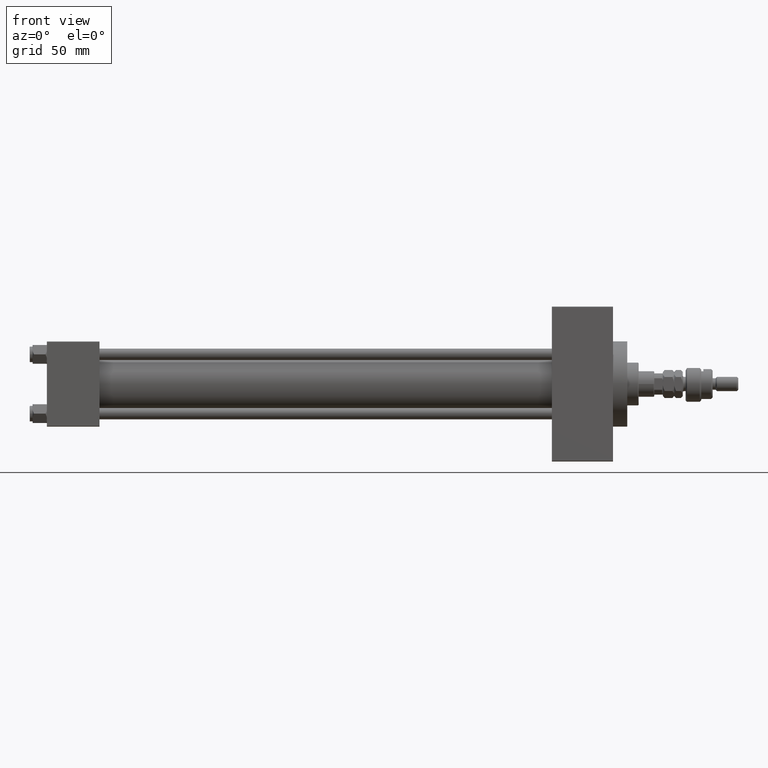
[diagram: clean part render]
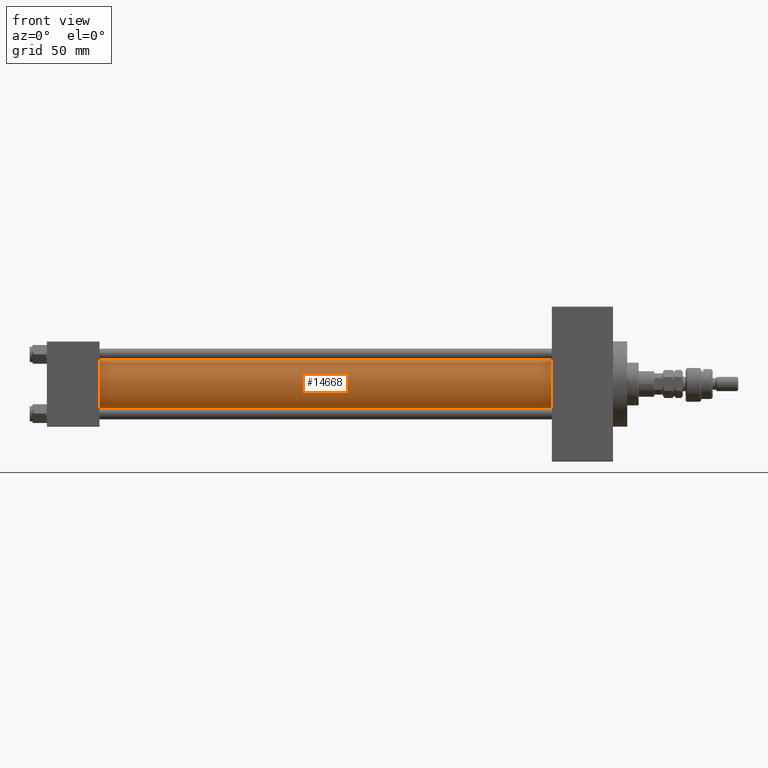
[diagram: same view with one face highlighted and labeled with its STEP entity id]
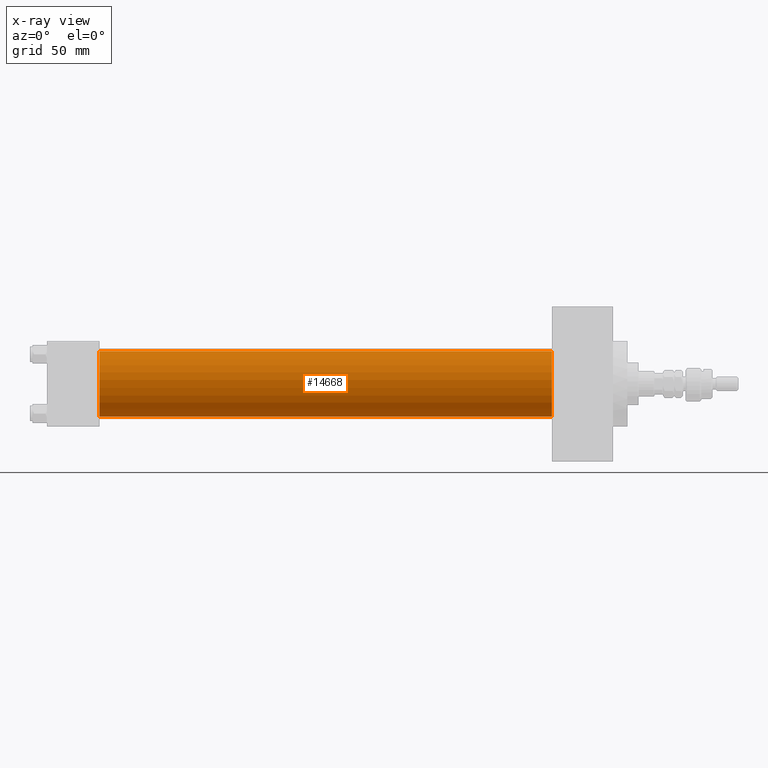
[diagram: x-ray of the same camera — body ghosted, the highlighted face saturated]
A machine part, front view. The second image highlights one B-rep face of the part: STEP entity #14668.
The next image is the same camera in x-ray: the body ghosted, the highlighted face saturated — about 0% of this face is hidden behind the body in this view.
In plain terms, the highlighted cylindrical surface (edge-blend (fillet) strip) has radius 23 mm, axis along (-1, -0, -0).
Its self-contained STEP definition (entity closure, byte-faithful):
#1684 = EDGE_CURVE ( 'NONE', #6411, #46277, #40632, .T. ) ;
#2391 = VERTEX_POINT ( 'NONE', #51022 ) ;
#4474 = LINE ( 'NONE', #16592, #9589 ) ;
#5575 = EDGE_CURVE ( 'NONE', #8148, #6411, #6589, .T. ) ;
#6411 = VERTEX_POINT ( 'NONE', #34731 ) ;
#6589 = CIRCLE ( 'NONE', #19941, 23.00000000000000000 ) ;
#7561 = ORIENTED_EDGE ( 'NONE', *, *, #1684, .F. ) ;
#7568 = DIRECTION ( 'NONE',  ( 1.000000000000000000, -0.000000000000000000, 0.000000000000000000 ) ) ;
#8148 = VERTEX_POINT ( 'NONE', #12041 ) ;
#9589 = VECTOR ( 'NONE', #20557, 1000.000000000000000 ) ;
#11008 = DIRECTION ( 'NONE',  ( 0.000000000000000000, 0.000000000000000000, 1.000000000000000000 ) ) ;
#12041 = CARTESIAN_POINT ( 'NONE',  ( 355.0000000000000000, -2.602085213965210642E-15, 23.00000000000000000 ) ) ;
#14668 = ADVANCED_FACE ( 'NONE', ( #46475 ), #34381, .T. ) ;
#14870 = VECTOR ( 'NONE', #20894, 1000.000000000000000 ) ;
#15305 = CARTESIAN_POINT ( 'NONE',  ( 36.99999999999997868, 2.146024240737012665E-16, -23.00000000000000000 ) ) ;
#16052 = AXIS2_PLACEMENT_3D ( 'NONE', #21738, #50436, #37795 ) ;
#16140 = CARTESIAN_POINT ( 'NONE',  ( 355.0000000000000000, 2.146024240737012665E-16, -23.00000000000000000 ) ) ;
#16592 = CARTESIAN_POINT ( 'NONE',  ( 355.0000000000000000, -2.602085213965210642E-15, 23.00000000000000000 ) ) ;
#19941 = AXIS2_PLACEMENT_3D ( 'NONE', #42596, #42081, #41821 ) ;
#20557 = DIRECTION ( 'NONE',  ( -1.000000000000000000, -0.000000000000000000, -0.000000000000000000 ) ) ;
#20894 = DIRECTION ( 'NONE',  ( -1.000000000000000000, -0.000000000000000000, -0.000000000000000000 ) ) ;
#21738 = CARTESIAN_POINT ( 'NONE',  ( 355.0000000000000000, -2.602085213965210642E-15, 0.000000000000000000 ) ) ;
#23172 = CIRCLE ( 'NONE', #30844, 23.00000000000000000 ) ;
#30844 = AXIS2_PLACEMENT_3D ( 'NONE', #47108, #7568, #11008 ) ;
#31850 = ORIENTED_EDGE ( 'NONE', *, *, #37930, .T. ) ;
#32435 = EDGE_CURVE ( 'NONE', #8148, #2391, #4474, .T. ) ;
#33773 = ORIENTED_EDGE ( 'NONE', *, *, #32435, .T. ) ;
#34381 = CYLINDRICAL_SURFACE ( 'NONE', #16052, 23.00000000000000000 ) ;
#34731 = CARTESIAN_POINT ( 'NONE',  ( 355.0000000000000000, 2.146024240737012665E-16, -23.00000000000000000 ) ) ;
#37795 = DIRECTION ( 'NONE',  ( 0.000000000000000000, 0.000000000000000000, 1.000000000000000000 ) ) ;
#37930 = EDGE_CURVE ( 'NONE', #2391, #46277, #23172, .T. ) ;
#40632 = LINE ( 'NONE', #16140, #14870 ) ;
#41821 = DIRECTION ( 'NONE',  ( 0.000000000000000000, 0.000000000000000000, -1.000000000000000000 ) ) ;
#41829 = ORIENTED_EDGE ( 'NONE', *, *, #5575, .F. ) ;
#42081 = DIRECTION ( 'NONE',  ( 1.000000000000000000, 0.000000000000000000, 0.000000000000000000 ) ) ;
#42596 = CARTESIAN_POINT ( 'NONE',  ( 355.0000000000000000, -2.602085213965210642E-15, 0.000000000000000000 ) ) ;
#46277 = VERTEX_POINT ( 'NONE', #15305 ) ;
#46475 = FACE_OUTER_BOUND ( 'NONE', #48040, .T. ) ;
#47108 = CARTESIAN_POINT ( 'NONE',  ( 36.99999999999997868, -2.602085213965210642E-15, 0.000000000000000000 ) ) ;
#48040 = EDGE_LOOP ( 'NONE', ( #7561, #41829, #33773, #31850 ) ) ;
#50436 = DIRECTION ( 'NONE',  ( -1.000000000000000000, -0.000000000000000000, -0.000000000000000000 ) ) ;
#51022 = CARTESIAN_POINT ( 'NONE',  ( 36.99999999999997868, -2.602085213965210642E-15, 23.00000000000000000 ) ) ;